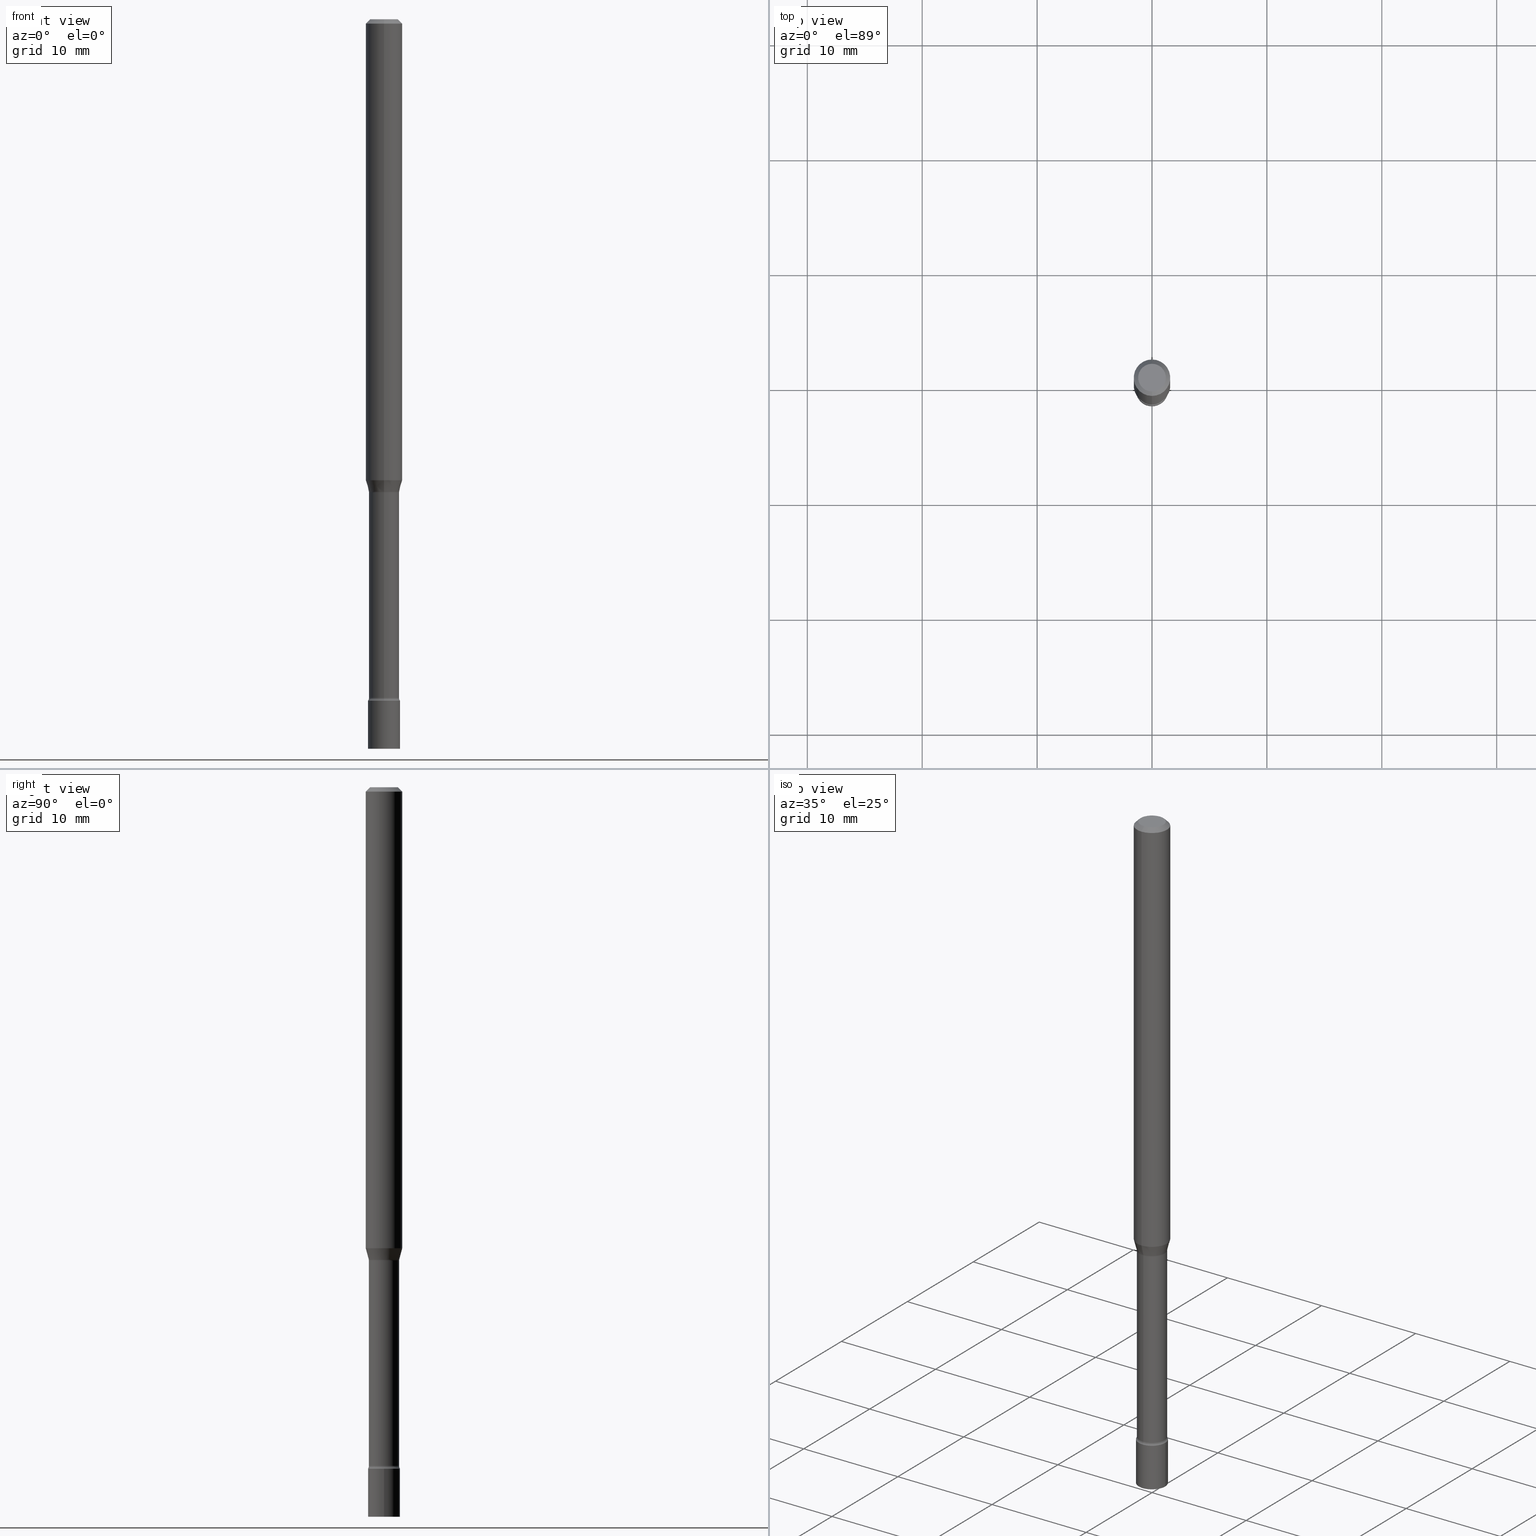
[diagram: canonical four-view strip — front | top / right | iso, engineering-drawing reading convention]
A machine part, canonical four-view strip (front | top / right | iso — engineering-drawing reading convention). The complete STEP part file that produces these views, byte-faithful:
ISO-10303-21;
HEADER;
FILE_DESCRIPTION (( 'STEP AP203' ),
    '1' );
FILE_NAME ('03586.STEP',
    '2024-03-08T21:57:32',
    ( '' ),
    ( '' ),
    'SwSTEP 2.0',
    'SolidWorks 2023',
    '' );
FILE_SCHEMA (( 'CONFIG_CONTROL_DESIGN' ));
ENDSEC;

DATA;
#1 = PLANE ( 'NONE',  #315 ) ;
#2 = ORIENTED_EDGE ( 'NONE', *, *, #482, .F. ) ;
#3 = ADVANCED_FACE ( 'NONE', ( #240 ), #472, .T. ) ;
#4 = CARTESIAN_POINT ( 'NONE',  ( 3.862943689972467044E-29, -5.515684043670850416E-15, -1.579693851278256345 ) ) ;
#5 = ORIENTED_EDGE ( 'NONE', *, *, #346, .F. ) ;
#6 = EDGE_CURVE ( 'NONE', #512, #322, #518, .T. ) ;
#7 = APPROVAL_DATE_TIME ( #137, #155 ) ;
#8 = CIRCLE ( 'NONE', #412, 0.05500000000000000028 ) ;
#9 = AXIS2_PLACEMENT_3D ( 'NONE', #95, #54, #62 ) ;
#10 = DIRECTION ( 'NONE',  ( -6.982962677686265922E-15, -1.000000000000000000, 5.232311393739396883E-15 ) ) ;
#11 = PLANE ( 'NONE',  #92 ) ;
#12 = COORDINATED_UNIVERSAL_TIME_OFFSET ( 5, 0, .BEHIND. ) ;
#13 = CARTESIAN_POINT ( 'NONE',  ( 3.862943689972467044E-29, -5.515684043670850416E-15, -1.579693851278256345 ) ) ;
#14 = EDGE_CURVE ( 'NONE', #72, #361, #8, .T. ) ;
#15 = PERSON_AND_ORGANIZATION ( #211, #136 ) ;
#16 = AXIS2_PLACEMENT_3D ( 'NONE', #407, #248, #405 ) ;
#17 = DIRECTION ( 'NONE',  ( -1.807323732225328562E-15, -0.2588190451025179639, 0.9659258262890690894 ) ) ;
#18 = MECHANICAL_CONTEXT ( 'NONE', #61, 'mechanical' ) ;
#19 = CARTESIAN_POINT ( 'NONE',  ( 3.966336429972027032E-29, -5.663312829388678949E-15, -1.621974787463811296 ) ) ;
#20 = ADVANCED_FACE ( 'NONE', ( #404 ), #85, .T. ) ;
#21 = CARTESIAN_POINT ( 'NONE',  ( -4.364351673553528673E-16, -0.06250000000000548173, -1.579693851278256123 ) ) ;
#22 = DIRECTION ( 'NONE',  ( 1.000000000000000000, -7.105427357601001070E-15, 4.926317155475149388E-29 ) ) ;
#23 = CIRCLE ( 'NONE', #110, 0.05500000000000000028 ) ;
#24 = LOCAL_TIME ( 16, 57, 32.00000000000000000, #55 ) ;
#25 = ORIENTED_EDGE ( 'NONE', *, *, #445, .F. ) ;
#26 = AXIS2_PLACEMENT_3D ( 'NONE', #450, #488, #135 ) ;
#27 = AXIS2_PLACEMENT_3D ( 'NONE', #309, #147, #75 ) ;
#28 = CC_DESIGN_DATE_AND_TIME_ASSIGNMENT ( #292, #182, ( #515 ) ) ;
#29 = CARTESIAN_POINT ( 'NONE',  ( -0.05500000000000000028, -8.049857631985250360E-15, -2.334999999999999964 ) ) ;
#30 = ORIENTED_EDGE ( 'NONE', *, *, #38, .T. ) ;
#31 = DIRECTION ( 'NONE',  ( -6.982962677686265922E-15, -1.000000000000000000, 3.491615821133740331E-15 ) ) ;
#32 = ORIENTED_EDGE ( 'NONE', *, *, #199, .F. ) ;
#33 = EDGE_CURVE ( 'NONE', #396, #322, #39, .T. ) ;
#34 = DIRECTION ( 'NONE',  ( -6.982962677686265922E-15, -1.000000000000000000, 5.284038672464724125E-15 ) ) ;
#35 = VERTEX_POINT ( 'NONE', #166 ) ;
#36 = AXIS2_PLACEMENT_3D ( 'NONE', #124, #210, #285 ) ;
#37 = EDGE_LOOP ( 'NONE', ( #370, #354, #116, #279 ) ) ;
#38 = EDGE_CURVE ( 'NONE', #466, #357, #103, .T. ) ;
#39 = LINE ( 'NONE', #83, #298 ) ;
#40 = FACE_OUTER_BOUND ( 'NONE', #363, .T. ) ;
#41 = CARTESIAN_POINT ( 'NONE',  ( 3.668062346555307228E-31, -5.237423731700621245E-17, -0.01500000000000003067 ) ) ;
#42 = AXIS2_PLACEMENT_3D ( 'NONE', #208, #288, #161 ) ;
#43 = PLANE ( 'NONE',  #391 ) ;
#44 = DIRECTION ( 'NONE',  ( 1.000000000000000000, -6.982962677686262766E-15, 0.000000000000000000 ) ) ;
#45 = ADVANCED_FACE ( 'NONE', ( #406 ), #325, .F. ) ;
#46 = DIRECTION ( 'NONE',  ( -2.445374897703533178E-29, 3.491615821133740725E-15, 1.000000000000000000 ) ) ;
#47 = DIRECTION ( 'NONE',  ( -6.982962677686265133E-15, -1.000000000000000000, 3.491615821133740725E-15 ) ) ;
#48 = DATE_AND_TIME ( #483, #24 ) ;
#49 = ORIENTED_EDGE ( 'NONE', *, *, #145, .F. ) ;
#50 = AXIS2_PLACEMENT_3D ( 'NONE', #316, #430, #274 ) ;
#51 = CIRCLE ( 'NONE', #299, 0.04749999999999999362 ) ;
#52 = APPROVAL_PERSON_ORGANIZATION ( #134, #155, #171 ) ;
#53 = CARTESIAN_POINT ( 'NONE',  ( 0.05500000000000000028, -3.840629472727446888E-16, 2.681897226687764826E-30 ) ) ;
#54 = DIRECTION ( 'NONE',  ( -2.445374897703533178E-29, 3.491615821133740725E-15, 1.000000000000000000 ) ) ;
#55 = COORDINATED_UNIVERSAL_TIME_OFFSET ( 5, 0, .BEHIND. ) ;
#56 = DIRECTION ( 'NONE',  ( -6.982962677686265133E-15, -1.000000000000000000, 3.491615821133741120E-15 ) ) ;
#57 = DIRECTION ( 'NONE',  ( 1.000000000000000000, 0.000000000000000000, 0.000000000000000000 ) ) ;
#58 = FACE_OUTER_BOUND ( 'NONE', #202, .T. ) ;
#59 = CIRCLE ( 'NONE', #26, 0.05221111260566398821 ) ;
#60 = ADVANCED_FACE ( 'NONE', ( #170 ), #334, .F. ) ;
#61 = APPLICATION_CONTEXT ( 'configuration controlled 3d designs of mechanical parts and assemblies' ) ;
#62 = DIRECTION ( 'NONE',  ( -6.982962677686265922E-15, -1.000000000000000000, 5.232311393739396883E-15 ) ) ;
#63 = CARTESIAN_POINT ( 'NONE',  ( -3.610191704363403633E-16, -0.05170000000000567891, -1.621974787463810852 ) ) ;
#64 = ORIENTED_EDGE ( 'NONE', *, *, #102, .T. ) ;
#65 = LINE ( 'NONE', #307, #517 ) ;
#66 = CIRCLE ( 'NONE', #42, 0.05170000000000001678 ) ;
#67 = ORIENTED_EDGE ( 'NONE', *, *, #195, .T. ) ;
#68 = AXIS2_PLACEMENT_3D ( 'NONE', #382, #97, #183 ) ;
#69 = AXIS2_PLACEMENT_3D ( 'NONE', #235, #460, #115 ) ;
#70 = EDGE_CURVE ( 'NONE', #357, #466, #390, .T. ) ;
#71 = FACE_OUTER_BOUND ( 'NONE', #80, .T. ) ;
#72 = VERTEX_POINT ( 'NONE', #415 ) ;
#73 = DIRECTION ( 'NONE',  ( -2.445374897703533178E-29, 3.491615821133740331E-15, 1.000000000000000000 ) ) ;
#74 = ORIENTED_EDGE ( 'NONE', *, *, #38, .F. ) ;
#75 = DIRECTION ( 'NONE',  ( -6.982962677686265922E-15, -1.000000000000000000, 3.491615821133740725E-15 ) ) ;
#76 = ORIENTED_EDGE ( 'NONE', *, *, #504, .F. ) ;
#77 = ADVANCED_FACE ( 'NONE', ( #90 ), #216, .F. ) ;
#78 = VECTOR ( 'NONE', #17, 39.37007874015748854 ) ;
#79 = ORIENTED_EDGE ( 'NONE', *, *, #167, .F. ) ;
#80 = EDGE_LOOP ( 'NONE', ( #393, #111, #410, #190 ) ) ;
#81 = DIRECTION ( 'NONE',  ( -6.982962677686265133E-15, -1.000000000000000000, 3.491615821133740725E-15 ) ) ;
#82 = EDGE_CURVE ( 'NONE', #319, #451, #138, .T. ) ;
#83 = CARTESIAN_POINT ( 'NONE',  ( 4.364351673553919652E-16, 0.06249999999999995143, -0.01500000000000024751 ) ) ;
#84 = ADVANCED_BREP_SHAPE_REPRESENTATION ( '03586', ( #355, #513, #164 ), #149 ) ;
#85 = CONICAL_SURFACE ( 'NONE', #207, 0.06250000000000000000, 0.7853981633974483900 ) ;
#86 = DIRECTION ( 'NONE',  ( -1.000000000000000000, 6.982962677686265922E-15, -4.876176775795935793E-29 ) ) ;
#87 = VERTEX_POINT ( 'NONE', #336 ) ;
#88 = PERSON_AND_ORGANIZATION ( #211, #136 ) ;
#89 = ORIENTED_EDGE ( 'NONE', *, *, #176, .F. ) ;
#90 = FACE_OUTER_BOUND ( 'NONE', #106, .T. ) ;
#91 = CC_DESIGN_PERSON_AND_ORGANIZATION_ASSIGNMENT ( #15, #294, ( #181 ) ) ;
#92 = AXIS2_PLACEMENT_3D ( 'NONE', #224, #411, #378 ) ;
#93 = AXIS2_PLACEMENT_3D ( 'NONE', #442, #249, #47 ) ;
#94 = VECTOR ( 'NONE', #388, 39.37007874015748143 ) ;
#95 = CARTESIAN_POINT ( 'NONE',  ( 3.956842786032907130E-29, -5.649757379298318681E-15, -1.618092501787273374 ) ) ;
#96 = CC_DESIGN_PERSON_AND_ORGANIZATION_ASSIGNMENT ( #419, #250, ( #515 ) ) ;
#97 = DIRECTION ( 'NONE',  ( 2.445374897703532897E-29, -3.491615821133740331E-15, -1.000000000000000000 ) ) ;
#98 = ADVANCED_FACE ( 'NONE', ( #58 ), #459, .T. ) ;
#99 = DIRECTION ( 'NONE',  ( -6.982962677686266711E-15, -1.000000000000000000, 3.491615821133741120E-15 ) ) ;
#100 = CC_DESIGN_SECURITY_CLASSIFICATION ( #458, ( #215 ) ) ;
#101 = DIRECTION ( 'NONE',  ( -6.982962677686265922E-15, -1.000000000000000000, 5.284038672464724125E-15 ) ) ;
#102 = EDGE_CURVE ( 'NONE', #375, #357, #179, .T. ) ;
#103 = CIRCLE ( 'NONE', #265, 0.05500000000000000028 ) ;
#104 = DIRECTION ( 'NONE',  ( -4.851104656540964275E-15, -0.7071067811865500152, -0.7071067811865450192 ) ) ;
#105 = CC_DESIGN_PERSON_AND_ORGANIZATION_ASSIGNMENT ( #335, #144, ( #215 ) ) ;
#106 = EDGE_LOOP ( 'NONE', ( #194, #201 ) ) ;
#107 = LINE ( 'NONE', #358, #519 ) ;
#108 = ORIENTED_EDGE ( 'NONE', *, *, #241, .F. ) ;
#109 = DIRECTION ( 'NONE',  ( -2.445374897703533178E-29, 3.491615821133740725E-15, 1.000000000000000000 ) ) ;
#110 = AXIS2_PLACEMENT_3D ( 'NONE', #463, #426, #432 ) ;
#111 = ORIENTED_EDGE ( 'NONE', *, *, #331, .T. ) ;
#112 = CC_DESIGN_PERSON_AND_ORGANIZATION_ASSIGNMENT ( #142, #374, ( #458 ) ) ;
#113 = CARTESIAN_POINT ( 'NONE',  ( 3.668062346555307228E-31, -5.237423731700621245E-17, -0.01500000000000003067 ) ) ;
#114 = ORIENTED_EDGE ( 'NONE', *, *, #125, .F. ) ;
#115 = DIRECTION ( 'NONE',  ( -6.982962677686265922E-15, -1.000000000000000000, 3.483106191921935554E-15 ) ) ;
#116 = ORIENTED_EDGE ( 'NONE', *, *, #297, .T. ) ;
#117 = DIRECTION ( 'NONE',  ( -6.982962677686265922E-15, -1.000000000000000000, 3.491615821133740331E-15 ) ) ;
#118 = LOCAL_TIME ( 16, 57, 32.00000000000000000, #446 ) ;
#119 = CIRCLE ( 'NONE', #296, 0.05500000000000000028 ) ;
#120 = DIRECTION ( 'NONE',  ( -6.982962677686267499E-15, -1.000000000000000000, 0.000000000000000000 ) ) ;
#121 = ORIENTED_EDGE ( 'NONE', *, *, #237, .F. ) ;
#122 = EDGE_CURVE ( 'NONE', #87, #372, #507, .T. ) ;
#123 = DIRECTION ( 'NONE',  ( 1.000000000000000000, -6.982962677686262766E-15, 0.000000000000000000 ) ) ;
#124 = CARTESIAN_POINT ( 'NONE',  ( 3.668062346555307228E-31, -5.237423731700621245E-17, -0.01500000000000003067 ) ) ;
#125 = EDGE_CURVE ( 'NONE', #361, #72, #198, .T. ) ;
#126 = DIRECTION ( 'NONE',  ( -2.445468806185136597E-29, 3.491481338843145583E-15, 1.000000000000000000 ) ) ;
#127 = EDGE_LOOP ( 'NONE', ( #506, #227, #130, #67 ) ) ;
#128 = CIRCLE ( 'NONE', #282, 0.05170000000000001678 ) ;
#129 = CARTESIAN_POINT ( 'NONE',  ( -3.840629472726878415E-16, -0.05500000000000819511, -2.334999999999999964 ) ) ;
#130 = ORIENTED_EDGE ( 'NONE', *, *, #122, .T. ) ;
#131 = DIRECTION ( 'NONE',  ( 0.000000000000000000, 0.000000000000000000, 1.000000000000000000 ) ) ;
#132 = DIRECTION ( 'NONE',  ( -2.445374897703533178E-29, 3.491615821133740331E-15, 1.000000000000000000 ) ) ;
#133 = EDGE_CURVE ( 'NONE', #87, #333, #59, .T. ) ;
#134 = PERSON_AND_ORGANIZATION ( #211, #136 ) ;
#135 = DIRECTION ( 'NONE',  ( -6.982962677686265922E-15, -1.000000000000000000, 5.232311393739396883E-15 ) ) ;
#136 = ORGANIZATION ( 'UNSPECIFIED', 'UNSPECIFIED', '' ) ;
#137 = DATE_AND_TIME ( #174, #350 ) ;
#138 = CIRCLE ( 'NONE', #489, 0.06250000000000000000 ) ;
#139 = APPROVAL_PERSON_ORGANIZATION ( #88, #339, #178 ) ;
#140 = CARTESIAN_POINT ( 'NONE',  ( 5.710169662442294357E-29, -8.152608926198745099E-15, -2.334999999999999964 ) ) ;
#141 = PRODUCT_DEFINITION_SHAPE ( 'NONE', 'NONE',  #515 ) ;
#142 = PERSON_AND_ORGANIZATION ( #211, #136 ) ;
#143 = DIRECTION ( 'NONE',  ( -2.445374897703533178E-29, 3.491615821133740725E-15, 1.000000000000000000 ) ) ;
#144 = PERSON_AND_ORGANIZATION_ROLE ( 'creator' ) ;
#145 = EDGE_CURVE ( 'NONE', #87, #319, #457, .T. ) ;
#146 = CARTESIAN_POINT ( 'NONE',  ( 3.673505943880288612E-16, 0.05169999999999435464, -1.621974787463811518 ) ) ;
#147 = DIRECTION ( 'NONE',  ( -2.445374897703533178E-29, 3.491615821133740725E-15, 1.000000000000000000 ) ) ;
#148 = VECTOR ( 'NONE', #344, 39.37007874015748854 ) ;
#149 =( GEOMETRIC_REPRESENTATION_CONTEXT ( 3 ) GLOBAL_UNCERTAINTY_ASSIGNED_CONTEXT ( ( #360 ) ) GLOBAL_UNIT_ASSIGNED_CONTEXT ( ( #481, #242, #362 ) ) REPRESENTATION_CONTEXT ( 'NONE', 'WORKASPACE' ) );
#150 = CYLINDRICAL_SURFACE ( 'NONE', #163, 0.05170000000000001678 ) ;
#151 = ORIENTED_EDGE ( 'NONE', *, *, #33, .F. ) ;
#152 = EDGE_CURVE ( 'NONE', #333, #87, #359, .T. ) ;
#153 = CYLINDRICAL_SURFACE ( 'NONE', #213, 0.06250000000000000000 ) ;
#154 = EDGE_LOOP ( 'NONE', ( #408, #283, #478, #151 ) ) ;
#155 = APPROVAL ( #455, 'UNSPECIFIED' ) ;
#156 = CARTESIAN_POINT ( 'NONE',  ( 0.000000000000000000, 0.000000000000000000, 0.000000000000000000 ) ) ;
#157 = EDGE_LOOP ( 'NONE', ( #79, #480, #427, #121 ) ) ;
#158 = DIRECTION ( 'NONE',  ( -2.445374897703533178E-29, 3.491615821133740331E-15, 1.000000000000000000 ) ) ;
#159 = ORIENTED_EDGE ( 'NONE', *, *, #133, .T. ) ;
#160 = EDGE_LOOP ( 'NONE', ( #5, #277, #433, #245 ) ) ;
#161 = DIRECTION ( 'NONE',  ( -6.982962677686265922E-15, -1.000000000000000000, 5.284038672464724125E-15 ) ) ;
#162 = ORIENTED_EDGE ( 'NONE', *, *, #314, .T. ) ;
#163 = AXIS2_PLACEMENT_3D ( 'NONE', #156, #387, #428 ) ;
#164 = AXIS2_PLACEMENT_3D ( 'NONE', #364, #131, #57 ) ;
#165 = DIRECTION ( 'NONE',  ( -2.445468806185136597E-29, 3.491481338843145583E-15, 1.000000000000000000 ) ) ;
#166 = CARTESIAN_POINT ( 'NONE',  ( -3.610191704363231562E-16, -0.05170000000000813528, -2.325613307291702458 ) ) ;
#167 = EDGE_CURVE ( 'NONE', #451, #322, #454, .T. ) ;
#168 = ORIENTED_EDGE ( 'NONE', *, *, #102, .F. ) ;
#169 = FACE_OUTER_BOUND ( 'NONE', #464, .T. ) ;
#170 = FACE_OUTER_BOUND ( 'NONE', #270, .T. ) ;
#171 = APPROVAL_ROLE ( '' ) ;
#172 = DIRECTION ( 'NONE',  ( -2.445468806185136877E-29, 3.491481338843145188E-15, 1.000000000000000000 ) ) ;
#173 = DIRECTION ( 'NONE',  ( -2.445374897703533178E-29, 3.491615821133740725E-15, 1.000000000000000000 ) ) ;
#174 = CALENDAR_DATE ( 2024, 8, 3 ) ;
#175 = DIRECTION ( 'NONE',  ( 7.105427357601001859E-15, 1.000000000000000000, 0.000000000000000000 ) ) ;
#176 = EDGE_CURVE ( 'NONE', #319, #512, #345, .T. ) ;
#177 = CIRCLE ( 'NONE', #323, 0.01500000000000002720 ) ;
#178 = APPROVAL_ROLE ( '' ) ;
#179 = CIRCLE ( 'NONE', #214, 0.01500000000000007924 ) ;
#180 = CARTESIAN_POINT ( 'NONE',  ( 3.709822678791109230E-16, 0.05221111260565833301, -1.618092501787273596 ) ) ;
#181 = PRODUCT ( '03586', '03586', '', ( #18 ) ) ;
#182 = DATE_TIME_ROLE ( 'creation_date' ) ;
#183 = DIRECTION ( 'NONE',  ( 6.982962677686265922E-15, 1.000000000000000000, -3.491615821133740331E-15 ) ) ;
#184 = CYLINDRICAL_SURFACE ( 'NONE', #50, 0.05500000000000000028 ) ;
#185 = AXIS2_PLACEMENT_3D ( 'NONE', #4, #471, #281 ) ;
#186 = APPROVAL_PERSON_ORGANIZATION ( #217, #373, #409 ) ;
#187 = FACE_OUTER_BOUND ( 'NONE', #234, .T. ) ;
#188 = AXIS2_PLACEMENT_3D ( 'NONE', #444, #302, #338 ) ;
#189 = CONICAL_SURFACE ( 'NONE', #16, 0.05221111260566398821, 0.2617993877991500740 ) ;
#190 = ORIENTED_EDGE ( 'NONE', *, *, #297, .F. ) ;
#191 = FACE_OUTER_BOUND ( 'NONE', #192, .T. ) ;
#192 = EDGE_LOOP ( 'NONE', ( #236, #437, #330, #114 ) ) ;
#193 = LINE ( 'NONE', #423, #206 ) ;
#194 = ORIENTED_EDGE ( 'NONE', *, *, #225, .T. ) ;
#195 = EDGE_CURVE ( 'NONE', #372, #205, #128, .T. ) ;
#196 = FACE_OUTER_BOUND ( 'NONE', #37, .T. ) ;
#197 = ORIENTED_EDGE ( 'NONE', *, *, #14, .T. ) ;
#198 = CIRCLE ( 'NONE', #349, 0.05500000000000000028 ) ;
#199 = EDGE_CURVE ( 'NONE', #251, #72, #494, .T. ) ;
#200 = CARTESIAN_POINT ( 'NONE',  ( 0.000000000000000000, 0.000000000000000000, 0.000000000000000000 ) ) ;
#201 = ORIENTED_EDGE ( 'NONE', *, *, #221, .T. ) ;
#202 = EDGE_LOOP ( 'NONE', ( #159, #275, #461, #49 ) ) ;
#203 = DIRECTION ( 'NONE',  ( -1.000000000000000000, 6.982962677686265922E-15, -4.883557194083112901E-29 ) ) ;
#204 = EDGE_CURVE ( 'NONE', #333, #451, #418, .T. ) ;
#205 = VERTEX_POINT ( 'NONE', #146 ) ;
#206 = VECTOR ( 'NONE', #158, 39.37007874015748143 ) ;
#207 = AXIS2_PLACEMENT_3D ( 'NONE', #41, #367, #402 ) ;
#208 = CARTESIAN_POINT ( 'NONE',  ( 5.686996403416423318E-29, -8.120148217578873415E-15, -2.325613307291702903 ) ) ;
#209 = CARTESIAN_POINT ( 'NONE',  ( 3.966488747161516570E-29, -5.663094702503973323E-15, -1.621974787463811296 ) ) ;
#210 = DIRECTION ( 'NONE',  ( -2.445374897703533178E-29, 3.491615821133740725E-15, 1.000000000000000000 ) ) ;
#211 = PERSON ( 'UNSPECIFIED', 'UNSPECIFIED', 'UNSPECIFIED', ('UNSPECIFIED'), ('UNSPECIFIED'), ('UNSPECIFIED') ) ;
#212 = EDGE_LOOP ( 'NONE', ( #308, #231, #468, #32 ) ) ;
#213 = AXIS2_PLACEMENT_3D ( 'NONE', #312, #395, #31 ) ;
#214 = AXIS2_PLACEMENT_3D ( 'NONE', #385, #293, #175 ) ;
#215 = PRODUCT_DEFINITION_FORMATION_WITH_SPECIFIED_SOURCE ( 'ANY', '', #181, .NOT_KNOWN. ) ;
#216 = PLANE ( 'NONE',  #68 ) ;
#217 = PERSON_AND_ORGANIZATION ( #211, #136 ) ;
#218 = DIRECTION ( 'NONE',  ( -2.445374897703533178E-29, 3.491615821133740331E-15, 1.000000000000000000 ) ) ;
#219 = COORDINATED_UNIVERSAL_TIME_OFFSET ( 5, 0, .BEHIND. ) ;
#220 = DIRECTION ( 'NONE',  ( -2.445374897703533178E-29, 3.491615821133740725E-15, 1.000000000000000000 ) ) ;
#221 = EDGE_CURVE ( 'NONE', #516, #396, #51, .T. ) ;
#222 = CALENDAR_DATE ( 2024, 8, 3 ) ;
#223 = DIRECTION ( 'NONE',  ( -6.982962677686267499E-15, -1.000000000000000000, 0.000000000000000000 ) ) ;
#224 = CARTESIAN_POINT ( 'NONE',  ( 3.840629472728017333E-16, 0.05499999999999184708, -2.335000000000000409 ) ) ;
#225 = EDGE_CURVE ( 'NONE', #396, #516, #383, .T. ) ;
#226 = CARTESIAN_POINT ( 'NONE',  ( -0.05500000000000000028, 3.907985046680551042E-16, -2.705414299640198362E-30 ) ) ;
#227 = ORIENTED_EDGE ( 'NONE', *, *, #133, .F. ) ;
#228 = CARTESIAN_POINT ( 'NONE',  ( 3.840629472727447874E-16, 0.04749999999999999362, -1.947592745229184365E-16 ) ) ;
#229 = AXIS2_PLACEMENT_3D ( 'NONE', #435, #476, #117 ) ;
#230 = CC_DESIGN_APPROVAL ( #155, ( #215 ) ) ;
#231 = ORIENTED_EDGE ( 'NONE', *, *, #377, .T. ) ;
#232 = CARTESIAN_POINT ( 'NONE',  ( 4.440892098501014676E-16, 0.06249999999999995143, -0.01500000000000024751 ) ) ;
#233 = ADVANCED_FACE ( 'NONE', ( #422 ), #11, .F. ) ;
#234 = EDGE_LOOP ( 'NONE', ( #108, #64, #352, #25 ) ) ;
#235 = CARTESIAN_POINT ( 'NONE',  ( 3.668062346555307228E-31, -5.237423731700621245E-17, -0.01500000000000003067 ) ) ;
#236 = ORIENTED_EDGE ( 'NONE', *, *, #377, .F. ) ;
#237 = EDGE_CURVE ( 'NONE', #322, #512, #467, .T. ) ;
#238 = LENGTH_MEASURE_WITH_UNIT ( LENGTH_MEASURE( 0.02539999999999999897 ), #332 );
#239 = ORIENTED_EDGE ( 'NONE', *, *, #445, .T. ) ;
#240 = FACE_OUTER_BOUND ( 'NONE', #470, .T. ) ;
#241 = EDGE_CURVE ( 'NONE', #375, #35, #327, .T. ) ;
#242 =( NAMED_UNIT ( * ) PLANE_ANGLE_UNIT ( ) SI_UNIT ( $, .RADIAN. ) );
#243 = CARTESIAN_POINT ( 'NONE',  ( 5.710169662442294357E-29, -8.152608926198745099E-15, -2.334999999999999964 ) ) ;
#244 = CARTESIAN_POINT ( 'NONE',  ( -4.657636106016177091E-16, -0.06670000000000821105, -2.325613307291702458 ) ) ;
#245 = ORIENTED_EDGE ( 'NONE', *, *, #237, .T. ) ;
#246 = AXIS2_PLACEMENT_3D ( 'NONE', #244, #203, #120 ) ;
#247 = AXIS2_PLACEMENT_3D ( 'NONE', #295, #456, #10 ) ;
#248 = DIRECTION ( 'NONE',  ( -2.445374897703533178E-29, 3.491615821133740725E-15, 1.000000000000000000 ) ) ;
#249 = DIRECTION ( 'NONE',  ( -2.445374897703533178E-29, 3.491615821133740725E-15, 1.000000000000000000 ) ) ;
#250 = PERSON_AND_ORGANIZATION_ROLE ( 'creator' ) ;
#251 = VERTEX_POINT ( 'NONE', #276 ) ;
#252 = EDGE_CURVE ( 'NONE', #429, #251, #23, .T. ) ;
#253 = SECURITY_CLASSIFICATION_LEVEL ( 'unclassified' ) ;
#254 = DIRECTION ( 'NONE',  ( -2.445374897703533178E-29, 3.491615821133740725E-15, 1.000000000000000000 ) ) ;
#255 = AXIS2_PLACEMENT_3D ( 'NONE', #347, #109, #34 ) ;
#256 = AXIS2_PLACEMENT_3D ( 'NONE', #369, #46, #371 ) ;
#257 = APPROVAL_STATUS ( 'not_yet_approved' ) ;
#258 = CARTESIAN_POINT ( 'NONE',  ( 4.440892098500625669E-16, 0.06250000000000000000, -2.182259888208587707E-16 ) ) ;
#259 = ORIENTED_EDGE ( 'NONE', *, *, #421, .F. ) ;
#260 = PERSON_AND_ORGANIZATION_ROLE ( 'design_supplier' ) ;
#261 = ADVANCED_FACE ( 'NONE', ( #191 ), #184, .T. ) ;
#262 = CARTESIAN_POINT ( 'NONE',  ( -4.657636106016342752E-16, -0.06670000000000567142, -1.621974787463810852 ) ) ;
#263 = APPLICATION_PROTOCOL_DEFINITION ( 'international standard', 'config_control_design', 1994, #453 ) ;
#264 = CARTESIAN_POINT ( 'NONE',  ( 7.068973114561044150E-46, -1.009339647231577562E-31, -2.890752301906574888E-17 ) ) ;
#265 = AXIS2_PLACEMENT_3D ( 'NONE', #328, #291, #287 ) ;
#266 = DIRECTION ( 'NONE',  ( -6.982962677686266711E-15, -1.000000000000000000, 3.491615821133741120E-15 ) ) ;
#267 = CARTESIAN_POINT ( 'NONE',  ( 3.907985046681124938E-16, 0.05499999999999190259, -2.335000000000000409 ) ) ;
#268 = ORIENTED_EDGE ( 'NONE', *, *, #145, .T. ) ;
#269 = CYLINDRICAL_SURFACE ( 'NONE', #27, 0.05170000000000001678 ) ;
#270 = EDGE_LOOP ( 'NONE', ( #168, #2, #239, #30 ) ) ;
#271 = CC_DESIGN_APPROVAL ( #339, ( #515 ) ) ;
#272 = ADVANCED_FACE ( 'NONE', ( #196 ), #150, .T. ) ;
#273 = CC_DESIGN_APPROVAL ( #373, ( #458 ) ) ;
#274 = DIRECTION ( 'NONE',  ( 1.000000000000000000, -6.982962677686266711E-15, 4.876176775795935793E-29 ) ) ;
#275 = ORIENTED_EDGE ( 'NONE', *, *, #204, .T. ) ;
#276 = CARTESIAN_POINT ( 'NONE',  ( 0.05500000000000000028, -9.112766294380608350E-15, -2.500000000000000000 ) ) ;
#277 = ORIENTED_EDGE ( 'NONE', *, *, #225, .F. ) ;
#278 = DIRECTION ( 'NONE',  ( -6.982962677686265133E-15, -1.000000000000000000, 3.491615821133741120E-15 ) ) ;
#279 = ORIENTED_EDGE ( 'NONE', *, *, #490, .F. ) ;
#280 = AXIS2_PLACEMENT_3D ( 'NONE', #502, #351, #278 ) ;
#281 = DIRECTION ( 'NONE',  ( -6.982962677686265922E-15, -1.000000000000000000, 4.370956789862821150E-15 ) ) ;
#282 = AXIS2_PLACEMENT_3D ( 'NONE', #19, #254, #101 ) ;
#283 = ORIENTED_EDGE ( 'NONE', *, *, #346, .T. ) ;
#284 = CIRCLE ( 'NONE', #246, 0.01500000000000007924 ) ;
#285 = DIRECTION ( 'NONE',  ( -6.982962677686265922E-15, -1.000000000000000000, 3.483106191921935554E-15 ) ) ;
#286 = FACE_OUTER_BOUND ( 'NONE', #127, .T. ) ;
#287 = DIRECTION ( 'NONE',  ( -6.982962677686266711E-15, -1.000000000000000000, 4.966996352116842287E-15 ) ) ;
#288 = DIRECTION ( 'NONE',  ( -2.445374897703533178E-29, 3.491615821133740725E-15, 1.000000000000000000 ) ) ;
#289 = DIRECTION ( 'NONE',  ( -2.445468806185136597E-29, 3.491481338843145583E-15, 1.000000000000000000 ) ) ;
#290 = AXIS2_PLACEMENT_3D ( 'NONE', #262, #420, #223 ) ;
#291 = DIRECTION ( 'NONE',  ( -2.445374897703533178E-29, 3.491615821133740725E-15, 1.000000000000000000 ) ) ;
#292 = DATE_AND_TIME ( #485, #341 ) ;
#293 = DIRECTION ( 'NONE',  ( 1.000000000000000000, -7.105427357601001070E-15, 4.926317155475149388E-29 ) ) ;
#294 = PERSON_AND_ORGANIZATION_ROLE ( 'design_owner' ) ;
#295 = CARTESIAN_POINT ( 'NONE',  ( 3.956842786032907130E-29, -5.649757379298318681E-15, -1.618092501787273374 ) ) ;
#296 = AXIS2_PLACEMENT_3D ( 'NONE', #320, #165, #123 ) ;
#297 = EDGE_CURVE ( 'NONE', #35, #372, #107, .T. ) ;
#298 = VECTOR ( 'NONE', #520, 39.37007874015748143 ) ;
#299 = AXIS2_PLACEMENT_3D ( 'NONE', #492, #143, #99 ) ;
#300 = DIRECTION ( 'NONE',  ( -2.445468806185136597E-29, 3.491481338843145583E-15, 1.000000000000000000 ) ) ;
#301 = DATE_TIME_ROLE ( 'classification_date' ) ;
#302 = DIRECTION ( 'NONE',  ( -2.445374897703533178E-29, 3.491615821133740725E-15, 1.000000000000000000 ) ) ;
#303 = APPROVAL_STATUS ( 'not_yet_approved' ) ;
#304 = ADVANCED_FACE ( 'NONE', ( #465 ), #449, .T. ) ;
#305 = DIRECTION ( 'NONE',  ( -2.445374897703533178E-29, 3.491615821133740725E-15, 1.000000000000000000 ) ) ;
#306 = VECTOR ( 'NONE', #172, 39.37007874015748143 ) ;
#307 = CARTESIAN_POINT ( 'NONE',  ( -4.287811248607203282E-16, -0.06250000000000005551, -0.01499999999999981209 ) ) ;
#308 = ORIENTED_EDGE ( 'NONE', *, *, #421, .T. ) ;
#309 = CARTESIAN_POINT ( 'NONE',  ( 0.000000000000000000, 0.000000000000000000, 0.000000000000000000 ) ) ;
#310 = CC_DESIGN_PERSON_AND_ORGANIZATION_ASSIGNMENT ( #384, #260, ( #215 ) ) ;
#311 = ORIENTED_EDGE ( 'NONE', *, *, #125, .T. ) ;
#312 = CARTESIAN_POINT ( 'NONE',  ( 0.000000000000000000, 0.000000000000000000, 0.000000000000000000 ) ) ;
#313 = ORIENTED_EDGE ( 'NONE', *, *, #490, .T. ) ;
#314 = EDGE_CURVE ( 'NONE', #333, #205, #177, .T. ) ;
#315 = AXIS2_PLACEMENT_3D ( 'NONE', #474, #436, #86 ) ;
#316 = CARTESIAN_POINT ( 'NONE',  ( 0.000000000000000000, 0.000000000000000000, 0.000000000000000000 ) ) ;
#317 = EDGE_LOOP ( 'NONE', ( #259, #501 ) ) ;
#318 = CARTESIAN_POINT ( 'NONE',  ( 4.075357388646060967E-16, 0.05221111260565833301, -1.618092501787273596 ) ) ;
#319 = VERTEX_POINT ( 'NONE', #21 ) ;
#320 = CARTESIAN_POINT ( 'NONE',  ( 6.113672015462842613E-29, -8.728703347107864943E-15, -2.500000000000000000 ) ) ;
#321 = ADVANCED_FACE ( 'NONE', ( #71 ), #269, .T. ) ;
#322 = VERTEX_POINT ( 'NONE', #232 ) ;
#323 = AXIS2_PLACEMENT_3D ( 'NONE', #397, #22, #496 ) ;
#324 = FACE_OUTER_BOUND ( 'NONE', #317, .T. ) ;
#325 = TOROIDAL_SURFACE ( 'NONE', #93, 0.06670000000000000928, 0.01500000000000002720 ) ;
#326 = EDGE_LOOP ( 'NONE', ( #74, #439 ) ) ;
#327 = CIRCLE ( 'NONE', #255, 0.05170000000000001678 ) ;
#328 = CARTESIAN_POINT ( 'NONE',  ( 5.709950386137749736E-29, -8.152922942347285030E-15, -2.334999999999999964 ) ) ;
#329 = CARTESIAN_POINT ( 'NONE',  ( 4.440892098501012704E-16, 0.06249999999999450440, -1.579693851278256789 ) ) ;
#330 = ORIENTED_EDGE ( 'NONE', *, *, #199, .T. ) ;
#331 = EDGE_CURVE ( 'NONE', #375, #205, #193, .T. ) ;
#332 =( LENGTH_UNIT ( ) NAMED_UNIT ( * ) SI_UNIT ( $, .METRE. ) );
#333 = VERTEX_POINT ( 'NONE', #318 ) ;
#334 = TOROIDAL_SURFACE ( 'NONE', #434, 0.06670000000000009255, 0.01500000000000008098 ) ;
#335 = PERSON_AND_ORGANIZATION ( #211, #136 ) ;
#336 = CARTESIAN_POINT ( 'NONE',  ( -3.645882506857870018E-16, -0.05221111260566963647, -1.618092501787272930 ) ) ;
#337 = APPROVAL_DATE_TIME ( #414, #339 ) ;
#338 = DIRECTION ( 'NONE',  ( -6.982962677686266711E-15, -1.000000000000000000, 4.966996352116842287E-15 ) ) ;
#339 = APPROVAL ( #257, 'UNSPECIFIED' ) ;
#340 = DIRECTION ( 'NONE',  ( 1.000000000000000000, -6.982962677686262766E-15, 0.000000000000000000 ) ) ;
#341 = LOCAL_TIME ( 16, 57, 32.00000000000000000, #12 ) ;
#342 = CLOSED_SHELL ( 'NONE', ( #417, #462, #261, #495 ) ) ;
#343 = SHAPE_DEFINITION_REPRESENTATION ( #141, #84 ) ;
#344 = DIRECTION ( 'NONE',  ( 1.839019923739598738E-15, 0.2588190451025247363, 0.9659258262890673130 ) ) ;
#345 = LINE ( 'NONE', #380, #498 ) ;
#346 = EDGE_CURVE ( 'NONE', #516, #512, #65, .T. ) ;
#347 = CARTESIAN_POINT ( 'NONE',  ( 5.686996403416423318E-29, -8.120148217578873415E-15, -2.325613307291702903 ) ) ;
#348 = TOROIDAL_SURFACE ( 'NONE', #452, 0.06670000000000000928, 0.01500000000000002720 ) ;
#349 = AXIS2_PLACEMENT_3D ( 'NONE', #140, #300, #340 ) ;
#350 = LOCAL_TIME ( 16, 57, 32.00000000000000000, #493 ) ;
#351 = DIRECTION ( 'NONE',  ( -2.445374897703533178E-29, 3.491615821133740725E-15, 1.000000000000000000 ) ) ;
#352 = ORIENTED_EDGE ( 'NONE', *, *, #70, .T. ) ;
#353 = CARTESIAN_POINT ( 'NONE',  ( 3.790745495280706529E-16, 0.05169999999999189827, -2.325613307291702903 ) ) ;
#354 = ORIENTED_EDGE ( 'NONE', *, *, #241, .T. ) ;
#355 = MANIFOLD_SOLID_BREP ( 'Body-Move/Copy2[1]', #342 ) ;
#356 = FACE_OUTER_BOUND ( 'NONE', #212, .T. ) ;
#357 = VERTEX_POINT ( 'NONE', #267 ) ;
#358 = CARTESIAN_POINT ( 'NONE',  ( -3.610191704363800528E-16, -0.05170000000000001678, 1.805165379526144466E-16 ) ) ;
#359 = CIRCLE ( 'NONE', #9, 0.05221111260566398821 ) ;
#360 = UNCERTAINTY_MEASURE_WITH_UNIT (LENGTH_MEASURE( 1.000000000000000082E-05 ), #481, 'distance_accuracy_value', 'NONE');
#361 = VERTEX_POINT ( 'NONE', #29 ) ;
#362 =( NAMED_UNIT ( * ) SI_UNIT ( $, .STERADIAN. ) SOLID_ANGLE_UNIT ( ) );
#363 = EDGE_LOOP ( 'NONE', ( #197, #311 ) ) ;
#364 = CARTESIAN_POINT ( 'NONE',  ( 0.000000000000000000, 0.000000000000000000, 0.000000000000000000 ) ) ;
#365 = EDGE_LOOP ( 'NONE', ( #424, #162, #313, #431 ) ) ;
#366 = DIRECTION ( 'NONE',  ( 1.000000000000000000, -6.982962677686265922E-15, 4.876176775795935793E-29 ) ) ;
#367 = DIRECTION ( 'NONE',  ( 2.445374897703533178E-29, -3.491615821133740725E-15, -1.000000000000000000 ) ) ;
#368 = CIRCLE ( 'NONE', #185, 0.06250000000000000000 ) ;
#369 = CARTESIAN_POINT ( 'NONE',  ( 3.966336429972027032E-29, -5.663312829388678949E-15, -1.621974787463811296 ) ) ;
#370 = ORIENTED_EDGE ( 'NONE', *, *, #331, .F. ) ;
#371 = DIRECTION ( 'NONE',  ( -6.982962677686265922E-15, -1.000000000000000000, 5.284038672464724125E-15 ) ) ;
#372 = VERTEX_POINT ( 'NONE', #63 ) ;
#373 = APPROVAL ( #303, 'UNSPECIFIED' ) ;
#374 = PERSON_AND_ORGANIZATION_ROLE ( 'classification_officer' ) ;
#375 = VERTEX_POINT ( 'NONE', #353 ) ;
#376 = VECTOR ( 'NONE', #218, 39.37007874015748143 ) ;
#377 = EDGE_CURVE ( 'NONE', #429, #361, #469, .T. ) ;
#378 = DIRECTION ( 'NONE',  ( -6.982962677686265922E-15, -1.000000000000000000, 3.491615821133740331E-15 ) ) ;
#379 = DATE_AND_TIME ( #416, #118 ) ;
#380 = CARTESIAN_POINT ( 'NONE',  ( -4.364351673553916201E-16, -0.06250000000000000000, 2.182259888208587707E-16 ) ) ;
#381 = APPROVAL_DATE_TIME ( #48, #373 ) ;
#382 = CARTESIAN_POINT ( 'NONE',  ( 3.316907271900976096E-16, 0.04749999999999999362, -1.803055130133855344E-16 ) ) ;
#383 = CIRCLE ( 'NONE', #473, 0.04749999999999999362 ) ;
#384 = PERSON_AND_ORGANIZATION ( #211, #136 ) ;
#385 = CARTESIAN_POINT ( 'NONE',  ( 4.739320047520443782E-16, 0.06669999999999197404, -2.325613307291702903 ) ) ;
#386 = ADVANCED_FACE ( 'NONE', ( #187 ), #413, .F. ) ;
#387 = DIRECTION ( 'NONE',  ( -2.445374897703533178E-29, 3.491615821133740725E-15, 1.000000000000000000 ) ) ;
#388 = DIRECTION ( 'NONE',  ( -2.445468806185136877E-29, 3.491481338843145188E-15, 1.000000000000000000 ) ) ;
#389 = ORIENTED_EDGE ( 'NONE', *, *, #152, .T. ) ;
#390 = CIRCLE ( 'NONE', #188, 0.05500000000000000028 ) ;
#391 = AXIS2_PLACEMENT_3D ( 'NONE', #479, #514, #366 ) ;
#392 = FACE_OUTER_BOUND ( 'NONE', #157, .T. ) ;
#393 = ORIENTED_EDGE ( 'NONE', *, *, #482, .T. ) ;
#394 = PRODUCT_RELATED_PRODUCT_CATEGORY ( 'detail', '', ( #181 ) ) ;
#395 = DIRECTION ( 'NONE',  ( -2.445374897703533178E-29, 3.491615821133740725E-15, 1.000000000000000000 ) ) ;
#396 = VERTEX_POINT ( 'NONE', #228 ) ;
#397 = CARTESIAN_POINT ( 'NONE',  ( 4.739320047520265302E-16, 0.06669999999999434714, -1.621974787463811518 ) ) ;
#398 = ORIENTED_EDGE ( 'NONE', *, *, #204, .F. ) ;
#399 = ADVANCED_FACE ( 'NONE', ( #392 ), #153, .T. ) ;
#400 = ORIENTED_EDGE ( 'NONE', *, *, #82, .T. ) ;
#401 = APPLICATION_PROTOCOL_DEFINITION ( 'international standard', 'config_control_design', 1994, #61 ) ;
#402 = DIRECTION ( 'NONE',  ( 6.982962677686265922E-15, 1.000000000000000000, -3.483106191921935554E-15 ) ) ;
#403 = CARTESIAN_POINT ( 'NONE',  ( -0.05500000000000000028, -8.049857631985250360E-15, -2.500000000000000000 ) ) ;
#404 = FACE_OUTER_BOUND ( 'NONE', #154, .T. ) ;
#405 = DIRECTION ( 'NONE',  ( -6.982962677686265922E-15, -1.000000000000000000, 5.232311393739396883E-15 ) ) ;
#406 = FACE_OUTER_BOUND ( 'NONE', #365, .T. ) ;
#407 = CARTESIAN_POINT ( 'NONE',  ( 3.956842786032907130E-29, -5.649757379298318681E-15, -1.618092501787273374 ) ) ;
#408 = ORIENTED_EDGE ( 'NONE', *, *, #221, .F. ) ;
#409 = APPROVAL_ROLE ( '' ) ;
#410 = ORIENTED_EDGE ( 'NONE', *, *, #195, .F. ) ;
#411 = DIRECTION ( 'NONE',  ( -2.445374897703532897E-29, 3.491615821133740331E-15, 1.000000000000000000 ) ) ;
#412 = AXIS2_PLACEMENT_3D ( 'NONE', #243, #289, #44 ) ;
#413 = TOROIDAL_SURFACE ( 'NONE', #280, 0.06670000000000009255, 0.01500000000000008098 ) ;
#414 = DATE_AND_TIME ( #222, #487 ) ;
#415 = CARTESIAN_POINT ( 'NONE',  ( 0.05500000000000000028, -8.536671873471490084E-15, -2.334999999999999964 ) ) ;
#416 = CALENDAR_DATE ( 2024, 8, 3 ) ;
#417 = ADVANCED_FACE ( 'NONE', ( #356 ), #505, .T. ) ;
#418 = LINE ( 'NONE', #180, #148 ) ;
#419 = PERSON_AND_ORGANIZATION ( #211, #136 ) ;
#420 = DIRECTION ( 'NONE',  ( -1.000000000000000000, 6.982962677686265922E-15, -4.883557194083112901E-29 ) ) ;
#421 = EDGE_CURVE ( 'NONE', #251, #429, #119, .T. ) ;
#422 = FACE_OUTER_BOUND ( 'NONE', #326, .T. ) ;
#423 = CARTESIAN_POINT ( 'NONE',  ( 3.673505943879718660E-16, 0.05170000000000001678, -1.805165379526144466E-16 ) ) ;
#424 = ORIENTED_EDGE ( 'NONE', *, *, #152, .F. ) ;
#425 = ADVANCED_FACE ( 'NONE', ( #286 ), #348, .F. ) ;
#426 = DIRECTION ( 'NONE',  ( -2.445468806185136597E-29, 3.491481338843145583E-15, 1.000000000000000000 ) ) ;
#427 = ORIENTED_EDGE ( 'NONE', *, *, #176, .T. ) ;
#428 = DIRECTION ( 'NONE',  ( -6.982962677686265922E-15, -1.000000000000000000, 3.491615821133740725E-15 ) ) ;
#429 = VERTEX_POINT ( 'NONE', #403 ) ;
#430 = DIRECTION ( 'NONE',  ( -2.445468806185136597E-29, 3.491481338843145583E-15, 1.000000000000000000 ) ) ;
#431 = ORIENTED_EDGE ( 'NONE', *, *, #122, .F. ) ;
#432 = DIRECTION ( 'NONE',  ( 1.000000000000000000, -6.982962677686262766E-15, 0.000000000000000000 ) ) ;
#433 = ORIENTED_EDGE ( 'NONE', *, *, #33, .T. ) ;
#434 = AXIS2_PLACEMENT_3D ( 'NONE', #484, #220, #56 ) ;
#435 = CARTESIAN_POINT ( 'NONE',  ( 0.000000000000000000, 0.000000000000000000, 0.000000000000000000 ) ) ;
#436 = DIRECTION ( 'NONE',  ( 2.438088387897960049E-29, -3.491481338843145188E-15, -1.000000000000000000 ) ) ;
#437 = ORIENTED_EDGE ( 'NONE', *, *, #252, .T. ) ;
#438 = DIRECTION ( 'NONE',  ( -2.445374897703533178E-29, 3.491615821133740725E-15, 1.000000000000000000 ) ) ;
#439 = ORIENTED_EDGE ( 'NONE', *, *, #70, .F. ) ;
#440 = DIRECTION ( 'NONE',  ( 1.000000000000000000, -6.982962677686266711E-15, 4.876176775795935793E-29 ) ) ;
#441 = CLOSED_SHELL ( 'NONE', ( #45, #321, #386, #20, #3, #98, #477, #399, #304, #77, #233, #60, #272, #425 ) ) ;
#442 = CARTESIAN_POINT ( 'NONE',  ( 3.966488747161516570E-29, -5.663094702503973323E-15, -1.621974787463811296 ) ) ;
#443 = CARTESIAN_POINT ( 'NONE',  ( -3.773273898774340269E-16, -0.04749999999999999362, 1.369442284847869018E-16 ) ) ;
#444 = CARTESIAN_POINT ( 'NONE',  ( 5.709950386137749736E-29, -8.152922942347285030E-15, -2.334999999999999964 ) ) ;
#445 = EDGE_CURVE ( 'NONE', #35, #466, #284, .T. ) ;
#446 = COORDINATED_UNIVERSAL_TIME_OFFSET ( 5, 0, .BEHIND. ) ;
#447 = CARTESIAN_POINT ( 'NONE',  ( -3.645882506857870018E-16, -0.05221111260566963647, -1.618092501787272930 ) ) ;
#448 = DESIGN_CONTEXT ( 'detailed design', #453, 'design' ) ;
#449 = CONICAL_SURFACE ( 'NONE', #475, 0.06250000000000000000, 0.7853981633974483900 ) ;
#450 = CARTESIAN_POINT ( 'NONE',  ( 3.956842786032907130E-29, -5.649757379298318681E-15, -1.618092501787273374 ) ) ;
#451 = VERTEX_POINT ( 'NONE', #329 ) ;
#452 = AXIS2_PLACEMENT_3D ( 'NONE', #209, #438, #81 ) ;
#453 = APPLICATION_CONTEXT ( 'configuration controlled 3d designs of mechanical parts and assemblies' ) ;
#454 = LINE ( 'NONE', #258, #376 ) ;
#455 = APPROVAL_STATUS ( 'not_yet_approved' ) ;
#456 = DIRECTION ( 'NONE',  ( -2.445374897703533178E-29, 3.491615821133740725E-15, 1.000000000000000000 ) ) ;
#457 = LINE ( 'NONE', #447, #78 ) ;
#458 = SECURITY_CLASSIFICATION ( '', '', #253 ) ;
#459 = CONICAL_SURFACE ( 'NONE', #247, 0.05221111260566398821, 0.2617993877991500740 ) ;
#460 = DIRECTION ( 'NONE',  ( -2.445374897703533178E-29, 3.491615821133740725E-15, 1.000000000000000000 ) ) ;
#461 = ORIENTED_EDGE ( 'NONE', *, *, #82, .F. ) ;
#462 = ADVANCED_FACE ( 'NONE', ( #40 ), #43, .T. ) ;
#463 = CARTESIAN_POINT ( 'NONE',  ( 6.113672015462842613E-29, -8.728703347107864943E-15, -2.500000000000000000 ) ) ;
#464 = EDGE_LOOP ( 'NONE', ( #398, #389, #268, #76 ) ) ;
#465 = FACE_OUTER_BOUND ( 'NONE', #160, .T. ) ;
#466 = VERTEX_POINT ( 'NONE', #129 ) ;
#467 = CIRCLE ( 'NONE', #69, 0.06250000000000000000 ) ;
#468 = ORIENTED_EDGE ( 'NONE', *, *, #14, .F. ) ;
#469 = LINE ( 'NONE', #226, #94 ) ;
#470 = EDGE_LOOP ( 'NONE', ( #400, #509, #503, #89 ) ) ;
#471 = DIRECTION ( 'NONE',  ( -2.445374897703533178E-29, 3.491615821133740725E-15, 1.000000000000000000 ) ) ;
#472 = CYLINDRICAL_SURFACE ( 'NONE', #229, 0.06250000000000000000 ) ;
#473 = AXIS2_PLACEMENT_3D ( 'NONE', #264, #305, #266 ) ;
#474 = CARTESIAN_POINT ( 'NONE',  ( 3.840629472728058255E-16, 0.05499999999999127809, -2.500000000000000000 ) ) ;
#475 = AXIS2_PLACEMENT_3D ( 'NONE', #113, #508, #500 ) ;
#476 = DIRECTION ( 'NONE',  ( -2.445374897703533178E-29, 3.491615821133740725E-15, 1.000000000000000000 ) ) ;
#477 = ADVANCED_FACE ( 'NONE', ( #169 ), #189, .T. ) ;
#478 = ORIENTED_EDGE ( 'NONE', *, *, #6, .T. ) ;
#479 = CARTESIAN_POINT ( 'NONE',  ( 5.710169662442294357E-29, -8.152608926198745099E-15, -2.334999999999999964 ) ) ;
#480 = ORIENTED_EDGE ( 'NONE', *, *, #504, .T. ) ;
#481 =( CONVERSION_BASED_UNIT ( 'INCH', #238 ) LENGTH_UNIT ( ) NAMED_UNIT ( #491 ) );
#482 = EDGE_CURVE ( 'NONE', #35, #375, #66, .T. ) ;
#483 = CALENDAR_DATE ( 2024, 8, 3 ) ;
#484 = CARTESIAN_POINT ( 'NONE',  ( 5.687214798230907854E-29, -8.119835463774270932E-15, -2.325613307291702903 ) ) ;
#485 = CALENDAR_DATE ( 2024, 8, 3 ) ;
#486 = DIRECTION ( 'NONE',  ( -6.982962677686265922E-15, -1.000000000000000000, 4.370956789862821150E-15 ) ) ;
#487 = LOCAL_TIME ( 16, 57, 32.00000000000000000, #219 ) ;
#488 = DIRECTION ( 'NONE',  ( -2.445374897703533178E-29, 3.491615821133740725E-15, 1.000000000000000000 ) ) ;
#489 = AXIS2_PLACEMENT_3D ( 'NONE', #13, #173, #486 ) ;
#490 = EDGE_CURVE ( 'NONE', #205, #372, #497, .T. ) ;
#491 = DIMENSIONAL_EXPONENTS ( 1.000000000000000000, 0.000000000000000000, 0.000000000000000000, 0.000000000000000000, 0.000000000000000000, 0.000000000000000000, 0.000000000000000000 ) ;
#492 = CARTESIAN_POINT ( 'NONE',  ( 7.068973114561044150E-46, -1.009339647231577562E-31, -2.890752301906574888E-17 ) ) ;
#493 = COORDINATED_UNIVERSAL_TIME_OFFSET ( 5, 0, .BEHIND. ) ;
#494 = LINE ( 'NONE', #53, #306 ) ;
#495 = ADVANCED_FACE ( 'NONE', ( #324 ), #1, .T. ) ;
#496 = DIRECTION ( 'NONE',  ( 7.105427357601001859E-15, 1.000000000000000000, 0.000000000000000000 ) ) ;
#497 = CIRCLE ( 'NONE', #256, 0.05170000000000001678 ) ;
#498 = VECTOR ( 'NONE', #132, 39.37007874015748143 ) ;
#499 = AXIS2_PLACEMENT_3D ( 'NONE', #200, #126, #440 ) ;
#500 = DIRECTION ( 'NONE',  ( 6.982962677686265922E-15, 1.000000000000000000, -3.483106191921935554E-15 ) ) ;
#501 = ORIENTED_EDGE ( 'NONE', *, *, #252, .F. ) ;
#502 = CARTESIAN_POINT ( 'NONE',  ( 5.687214798230907854E-29, -8.119835463774270932E-15, -2.325613307291702903 ) ) ;
#503 = ORIENTED_EDGE ( 'NONE', *, *, #6, .F. ) ;
#504 = EDGE_CURVE ( 'NONE', #451, #319, #368, .T. ) ;
#505 = CYLINDRICAL_SURFACE ( 'NONE', #499, 0.05500000000000000028 ) ;
#506 = ORIENTED_EDGE ( 'NONE', *, *, #314, .F. ) ;
#507 = CIRCLE ( 'NONE', #290, 0.01500000000000002720 ) ;
#508 = DIRECTION ( 'NONE',  ( 2.445374897703533178E-29, -3.491615821133740725E-15, -1.000000000000000000 ) ) ;
#509 = ORIENTED_EDGE ( 'NONE', *, *, #167, .T. ) ;
#510 = CC_DESIGN_DATE_AND_TIME_ASSIGNMENT ( #379, #301, ( #458 ) ) ;
#511 = CARTESIAN_POINT ( 'NONE',  ( -4.364351673553912750E-16, -0.06250000000000005551, -0.01499999999999981209 ) ) ;
#512 = VERTEX_POINT ( 'NONE', #511 ) ;
#513 = MANIFOLD_SOLID_BREP ( 'Body-Move/Copy2[2]', #441 ) ;
#514 = DIRECTION ( 'NONE',  ( -2.438088387897960049E-29, 3.491481338843145188E-15, 1.000000000000000000 ) ) ;
#515 = PRODUCT_DEFINITION ( 'UNKNOWN', '', #215, #448 ) ;
#516 = VERTEX_POINT ( 'NONE', #443 ) ;
#517 = VECTOR ( 'NONE', #104, 39.37007874015748143 ) ;
#518 = CIRCLE ( 'NONE', #36, 0.06250000000000000000 ) ;
#519 = VECTOR ( 'NONE', #73, 39.37007874015748143 ) ;
#520 = DIRECTION ( 'NONE',  ( 4.937700262164548042E-15, 0.7071067811865451302, -0.7071067811865499042 ) ) ;
ENDSEC;
END-ISO-10303-21;
